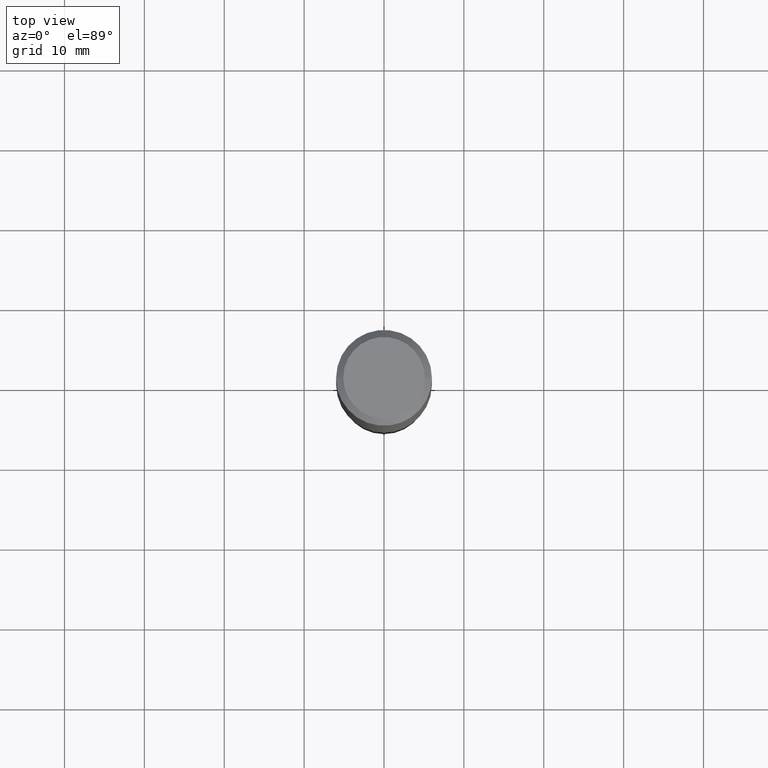
[diagram: clean part render]
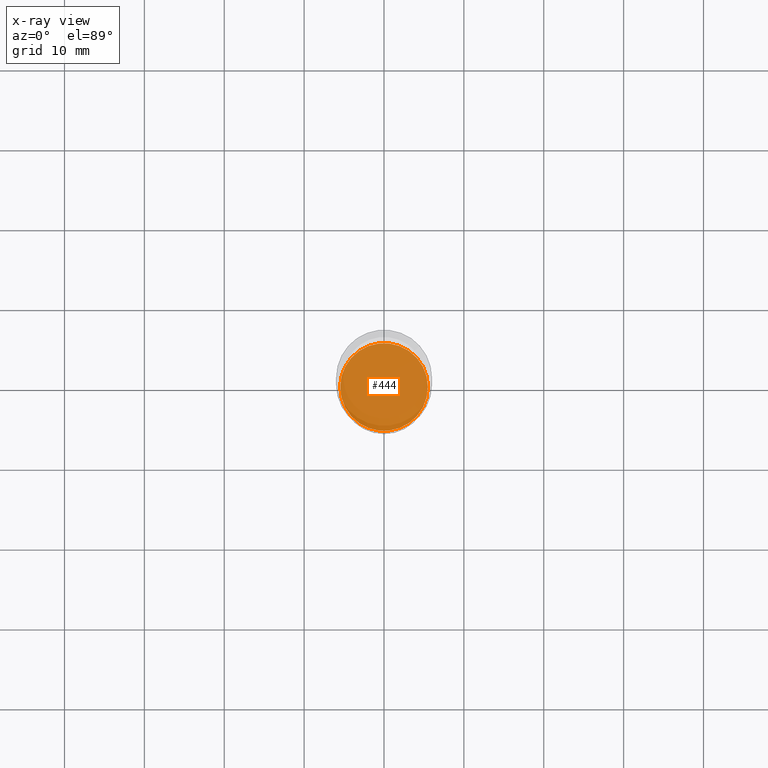
[diagram: x-ray — body ghosted, one internal face saturated and labeled with its STEP entity id]
A machine part, top view, then the same camera in x-ray: the body is ghosted and one INTERNAL B-rep face — a face not visible from any outside direction — is saturated and labeled: STEP entity #444.
In plain terms, the highlighted planar face has unit normal (-0, 0, 1).
Its self-contained STEP definition (entity closure, byte-faithful):
#13 = CARTESIAN_POINT ( 'NONE',  ( 6.488562383451022229E-29, -9.263947436352516081E-15, -2.653299999999999770 ) ) ;
#15 = EDGE_CURVE ( 'NONE', #80, #82, #37, .T. ) ;
#37 = CIRCLE ( 'NONE', #102, 0.2160500000000000198 ) ;
#79 = DIRECTION ( 'NONE',  ( -2.438088387897960049E-29, 3.491481338843145188E-15, 1.000000000000000000 ) ) ;
#80 = VERTEX_POINT ( 'NONE', #179 ) ;
#82 = VERTEX_POINT ( 'NONE', #142 ) ;
#84 = EDGE_CURVE ( 'NONE', #82, #80, #89, .T. ) ;
#89 = CIRCLE ( 'NONE', #440, 0.2160500000000000198 ) ;
#102 = AXIS2_PLACEMENT_3D ( 'NONE', #13, #453, #350 ) ;
#104 = DIRECTION ( 'NONE',  ( -2.445468806185136597E-29, 3.491481338843145583E-15, 1.000000000000000000 ) ) ;
#123 = CARTESIAN_POINT ( 'NONE',  ( 6.488562383451022229E-29, -9.263947436352516081E-15, -2.653299999999999770 ) ) ;
#142 = CARTESIAN_POINT ( 'NONE',  ( -0.2160500000000000198, -7.726170628568708682E-15, -2.653299999999999770 ) ) ;
#179 = CARTESIAN_POINT ( 'NONE',  ( 0.2160500000000000198, -1.077261652286663390E-14, -2.653299999999999770 ) ) ;
#185 = CARTESIAN_POINT ( 'NONE',  ( 6.488562383451022229E-29, -9.263947436352516081E-15, -2.653299999999999770 ) ) ;
#255 = ORIENTED_EDGE ( 'NONE', *, *, #84, .F. ) ;
#308 = FACE_OUTER_BOUND ( 'NONE', #349, .T. ) ;
#344 = AXIS2_PLACEMENT_3D ( 'NONE', #123, #79, #345 ) ;
#345 = DIRECTION ( 'NONE',  ( 1.000000000000000000, -6.982962677686265922E-15, 4.876176775795935793E-29 ) ) ;
#349 = EDGE_LOOP ( 'NONE', ( #379, #255 ) ) ;
#350 = DIRECTION ( 'NONE',  ( 1.000000000000000000, -6.982962677686266711E-15, 0.000000000000000000 ) ) ;
#379 = ORIENTED_EDGE ( 'NONE', *, *, #15, .F. ) ;
#440 = AXIS2_PLACEMENT_3D ( 'NONE', #185, #104, #460 ) ;
#442 = PLANE ( 'NONE',  #344 ) ;
#444 = ADVANCED_FACE ( 'NONE', ( #308 ), #442, .F. ) ;
#453 = DIRECTION ( 'NONE',  ( -2.445468806185136597E-29, 3.491481338843145583E-15, 1.000000000000000000 ) ) ;
#460 = DIRECTION ( 'NONE',  ( 1.000000000000000000, -6.982962677686266711E-15, 0.000000000000000000 ) ) ;